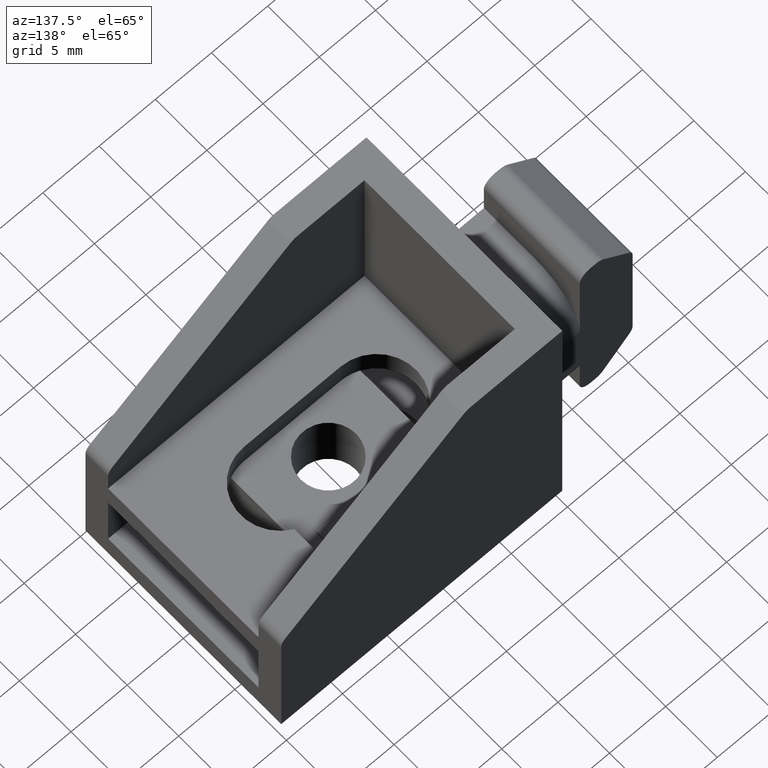
[diagram: clean part render]
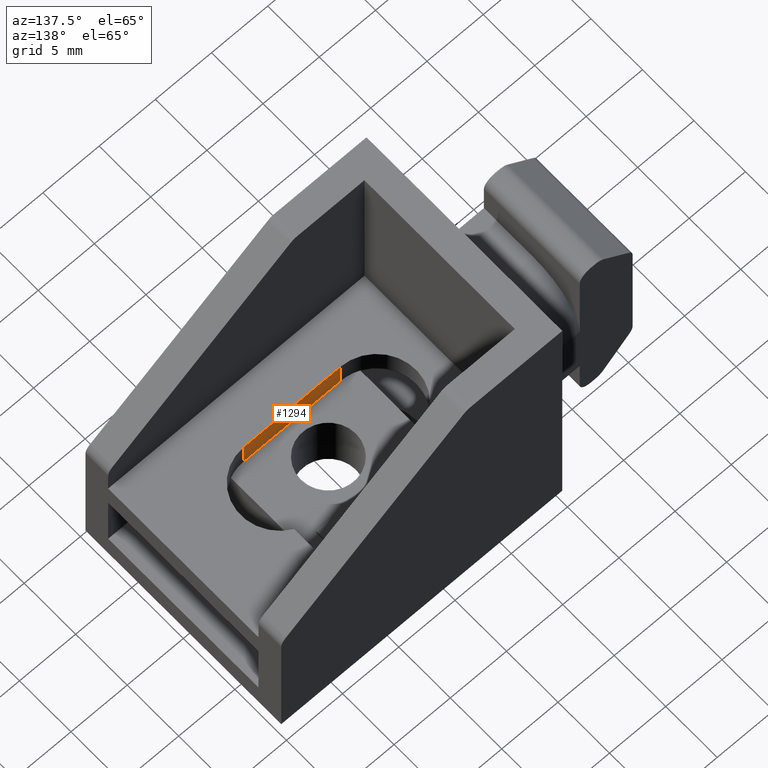
[diagram: same view with one face highlighted and labeled with its STEP entity id]
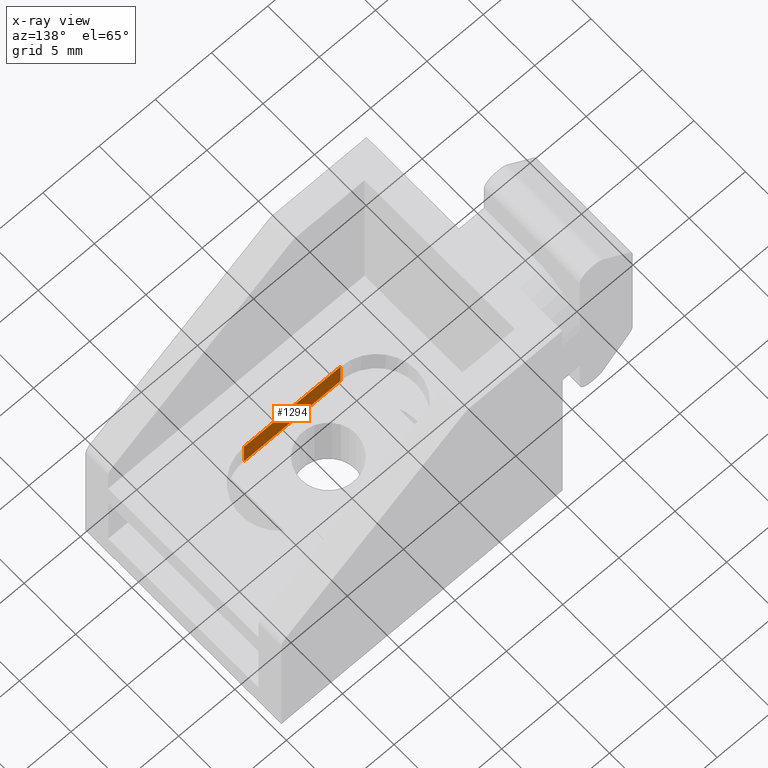
[diagram: x-ray of the same camera — body ghosted, the highlighted face saturated]
A machine part, auxiliary view. The second image highlights one B-rep face of the part: STEP entity #1294.
The next image is the same camera in x-ray: the body ghosted, the highlighted face saturated — about 0% of this face is hidden behind the body in this view.
In plain terms, the highlighted planar face has unit normal (-0, -1, 0).
Its self-contained STEP definition (entity closure, byte-faithful):
#33=PLANE('',#1384);
#77=LINE('',#1861,#221);
#103=LINE('',#1929,#247);
#131=LINE('',#1995,#275);
#139=LINE('',#2013,#283);
#221=VECTOR('',#1486,8.6);
#247=VECTOR('',#1548,2.2);
#275=VECTOR('',#1606,8.6);
#283=VECTOR('',#1626,2.2);
#387=FACE_OUTER_BOUND('',#456,.T.);
#456=EDGE_LOOP('',(#1029,#1030,#1031,#1032));
#561=VERTEX_POINT('',#1858);
#562=VERTEX_POINT('',#1860);
#586=VERTEX_POINT('',#1928);
#609=VERTEX_POINT('',#1994);
#690=EDGE_CURVE('',#561,#562,#77,.T.);
#726=EDGE_CURVE('',#562,#586,#103,.T.);
#760=EDGE_CURVE('',#586,#609,#131,.T.);
#769=EDGE_CURVE('',#561,#609,#139,.T.);
#1029=ORIENTED_EDGE('',*,*,#760,.F.);
#1030=ORIENTED_EDGE('',*,*,#726,.F.);
#1031=ORIENTED_EDGE('',*,*,#690,.F.);
#1032=ORIENTED_EDGE('',*,*,#769,.T.);
#1294=ADVANCED_FACE('',(#387),#33,.F.);
#1384=AXIS2_PLACEMENT_3D('',#2012,#1624,#1625);
#1486=DIRECTION('',(1.,-2.58191401075618E-16,-3.52451753849256E-16));
#1548=DIRECTION('',(1.79068229778251E-16,0.,1.));
#1606=DIRECTION('',(-1.,2.58191401075618E-16,3.52451753849256E-16));
#1624=DIRECTION('center_axis',(-2.58191401075618E-16,-1.,4.62338771345773E-32));
#1625=DIRECTION('ref_axis',(1.,-2.66453525910038E-16,-1.77635683940025E-16));
#1626=DIRECTION('',(1.79068229778251E-16,0.,1.));
#1858=CARTESIAN_POINT('',(7.8,-3.5,7.8));
#1860=CARTESIAN_POINT('',(16.4,-3.5,7.79999999999999));
#1861=CARTESIAN_POINT('',(16.4,-3.5,7.79999999999999));
#1928=CARTESIAN_POINT('',(16.4,-3.5,9.99999999999999));
#1929=CARTESIAN_POINT('',(16.4,-3.5,-2.91322521661641E-15));
#1994=CARTESIAN_POINT('',(7.8,-3.5,10.));
#1995=CARTESIAN_POINT('',(16.4,-3.5,9.99999999999999));
#2012=CARTESIAN_POINT('Origin',(7.8,-3.5,-1.38555833473219E-15));
#2013=CARTESIAN_POINT('',(7.8,-3.5,-1.3855583347322E-15));